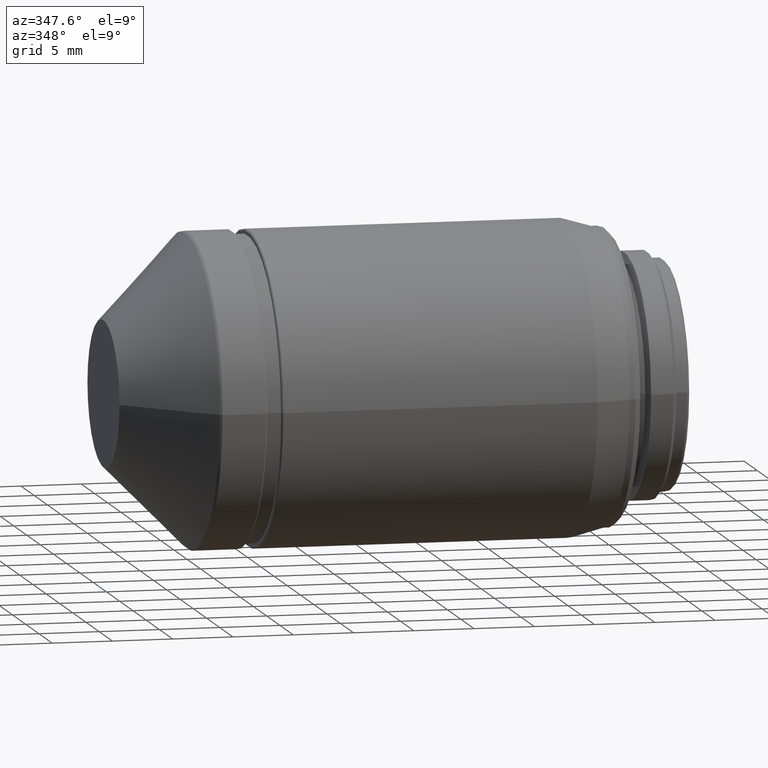
[diagram: clean part render]
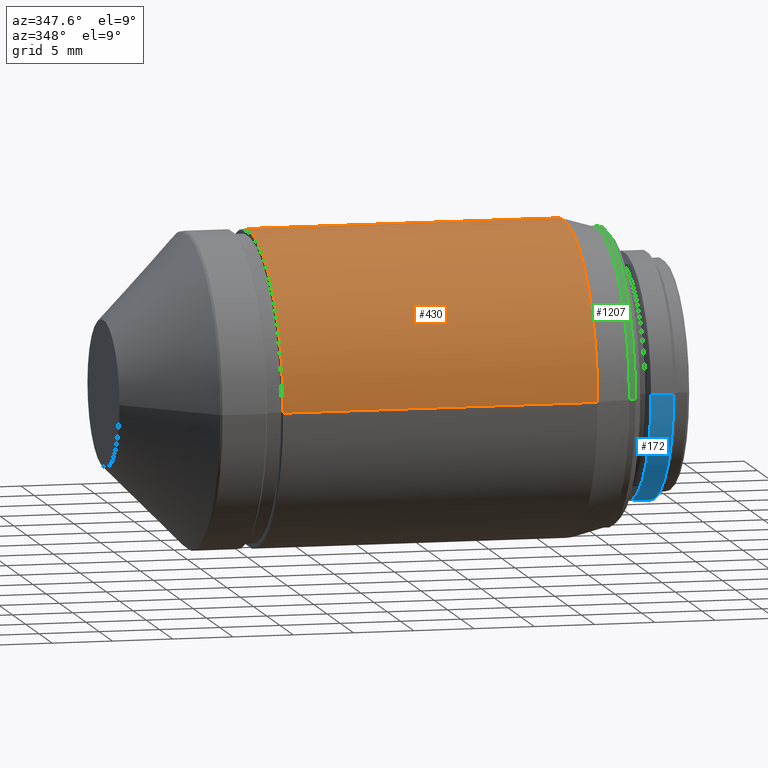
[diagram: same view with three faces highlighted in distinct colors, each labeled with its STEP entity id]
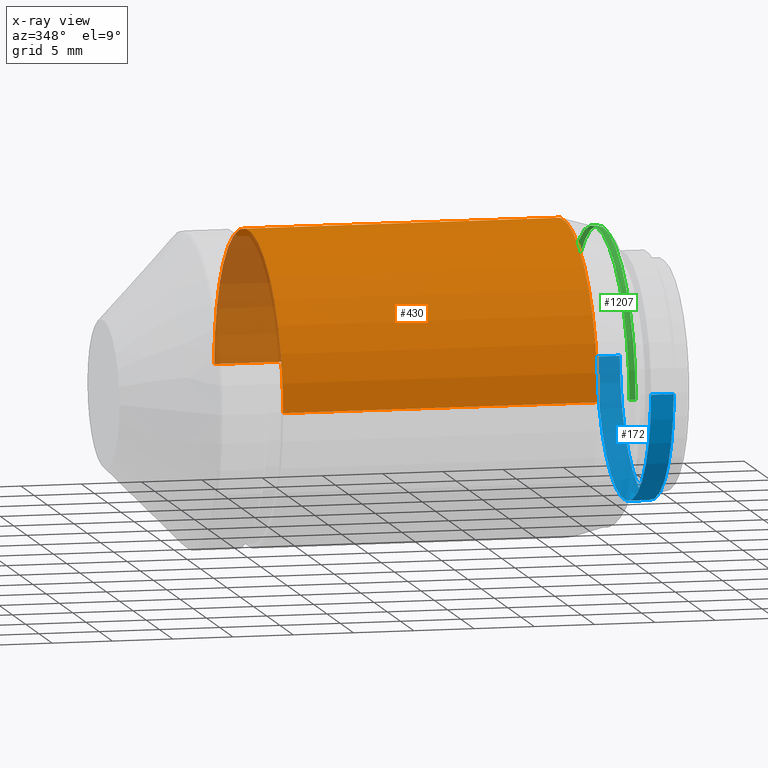
[diagram: x-ray of the same camera — body ghosted, the three highlighted faces saturated]
A machine part, auxiliary view with three faces highlighted in distinct colors.
The next image is the same camera in x-ray (body ghosted, the three faces saturated) — at least one of them is partly hidden behind the body in this view.
Their STEP definitions:

[orange] entity #430 — the highlighted cylindrical surface (partial cylindrical patch) has radius 13 mm, axis along (1, 0, 0).
#41 = DIRECTION ( 'NONE',  ( 2.668805347656626185E-16, -1.000000000000000000, 0.000000000000000000 ) ) ;
#64 = DIRECTION ( 'NONE',  ( 1.000000000000000000, 1.860059517696599800E-16, 0.000000000000000000 ) ) ;
#65 = DIRECTION ( 'NONE',  ( 1.000000000000000000, 1.860059517696599800E-16, 0.000000000000000000 ) ) ;
#68 = VERTEX_POINT ( 'NONE', #272 ) ;
#73 = CARTESIAN_POINT ( 'NONE',  ( 8.099999999999999645, -5.561577957912819503E-15, 0.000000000000000000 ) ) ;
#140 = CARTESIAN_POINT ( 'NONE',  ( 21.15048094716170013, -3.134110828284200127E-15, 0.000000000000000000 ) ) ;
#151 = AXIS2_PLACEMENT_3D ( 'NONE', #73, #65, #461 ) ;
#157 = CARTESIAN_POINT ( 'NONE',  ( 8.099999999999999645, 13.00000000000000000, -1.592040838891559884E-15 ) ) ;
#272 = CARTESIAN_POINT ( 'NONE',  ( 34.20096189432339884, -13.00000000000000000, -1.592040838891559884E-15 ) ) ;
#308 = EDGE_CURVE ( 'NONE', #395, #68, #786, .T. ) ;
#359 = VECTOR ( 'NONE', #1130, 1000.000000000000000 ) ;
#395 = VERTEX_POINT ( 'NONE', #439 ) ;
#411 = ORIENTED_EDGE ( 'NONE', *, *, #616, .T. ) ;
#430 = ADVANCED_FACE ( 'NONE', ( #452 ), #1027, .T. ) ;
#433 = ORIENTED_EDGE ( 'NONE', *, *, #676, .T. ) ;
#439 = CARTESIAN_POINT ( 'NONE',  ( 34.20096189432339884, 13.00000000000000000, 0.000000000000000000 ) ) ;
#452 = FACE_OUTER_BOUND ( 'NONE', #1243, .T. ) ;
#459 = LINE ( 'NONE', #1213, #359 ) ;
#461 = DIRECTION ( 'NONE',  ( -1.334402673828313093E-16, 1.000000000000000000, 0.000000000000000000 ) ) ;
#462 = ORIENTED_EDGE ( 'NONE', *, *, #656, .F. ) ;
#540 = ORIENTED_EDGE ( 'NONE', *, *, #308, .F. ) ;
#564 = AXIS2_PLACEMENT_3D ( 'NONE', #782, #1160, #798 ) ;
#589 = VERTEX_POINT ( 'NONE', #157 ) ;
#609 = AXIS2_PLACEMENT_3D ( 'NONE', #140, #743, #41 ) ;
#616 = EDGE_CURVE ( 'NONE', #589, #814, #707, .T. ) ;
#656 = EDGE_CURVE ( 'NONE', #589, #395, #935, .T. ) ;
#676 = EDGE_CURVE ( 'NONE', #814, #68, #459, .T. ) ;
#707 = CIRCLE ( 'NONE', #151, 13.00000000000000000 ) ;
#743 = DIRECTION ( 'NONE',  ( 1.000000000000000000, 1.860059517696599800E-16, 0.000000000000000000 ) ) ;
#782 = CARTESIAN_POINT ( 'NONE',  ( 34.20096189432339884, -7.066436986555820323E-16, 0.000000000000000000 ) ) ;
#786 = CIRCLE ( 'NONE', #564, 13.00000000000000000 ) ;
#798 = DIRECTION ( 'NONE',  ( 0.000000000000000000, 1.000000000000000000, 0.000000000000000000 ) ) ;
#814 = VERTEX_POINT ( 'NONE', #876 ) ;
#876 = CARTESIAN_POINT ( 'NONE',  ( 8.099999999999999645, -13.00000000000000000, 0.000000000000000000 ) ) ;
#906 = VECTOR ( 'NONE', #64, 1000.000000000000000 ) ;
#935 = LINE ( 'NONE', #1222, #906 ) ;
#1027 = CYLINDRICAL_SURFACE ( 'NONE', #609, 13.00000000000000000 ) ;
#1130 = DIRECTION ( 'NONE',  ( 1.000000000000000000, 1.860059517696599800E-16, 0.000000000000000000 ) ) ;
#1160 = DIRECTION ( 'NONE',  ( 1.000000000000000000, 1.860059517696599800E-16, 0.000000000000000000 ) ) ;
#1213 = CARTESIAN_POINT ( 'NONE',  ( 21.15048094716170013, -13.00000000000000000, 0.000000000000000000 ) ) ;
#1222 = CARTESIAN_POINT ( 'NONE',  ( 21.15048094716170013, 13.00000000000000000, -1.592040838891559884E-15 ) ) ;
#1243 = EDGE_LOOP ( 'NONE', ( #433, #540, #462, #411 ) ) ;

[blue] entity #172 — the highlighted cylindrical surface (partial cylindrical patch) has radius 10.16 mm, axis along (1, 0, 0).
#18 = FACE_OUTER_BOUND ( 'NONE', #816, .T. ) ;
#45 = AXIS2_PLACEMENT_3D ( 'NONE', #997, #700, #200 ) ;
#102 = DIRECTION ( 'NONE',  ( 0.000000000000000000, 1.000000000000000000, 0.000000000000000000 ) ) ;
#105 = CARTESIAN_POINT ( 'NONE',  ( 39.25218366420570248, 2.329136142509960081E-16, 0.000000000000000000 ) ) ;
#124 = VERTEX_POINT ( 'NONE', #491 ) ;
#172 = ADVANCED_FACE ( 'NONE', ( #18 ), #497, .T. ) ;
#177 = ORIENTED_EDGE ( 'NONE', *, *, #220, .T. ) ;
#200 = DIRECTION ( 'NONE',  ( 0.000000000000000000, -1.000000000000000000, 0.000000000000000000 ) ) ;
#219 = ORIENTED_EDGE ( 'NONE', *, *, #751, .F. ) ;
#220 = EDGE_CURVE ( 'NONE', #578, #124, #543, .T. ) ;
#257 = CIRCLE ( 'NONE', #405, 10.16000000000000014 ) ;
#267 = DIRECTION ( 'NONE',  ( 1.000000000000000000, 1.860059517696599800E-16, 0.000000000000000000 ) ) ;
#285 = VERTEX_POINT ( 'NONE', #396 ) ;
#355 = LINE ( 'NONE', #934, #849 ) ;
#393 = CARTESIAN_POINT ( 'NONE',  ( 41.11894882233480075, -10.16000000000000014, -1.244241147933709878E-15 ) ) ;
#396 = CARTESIAN_POINT ( 'NONE',  ( 41.11894882233480075, 10.16000000000000014, 0.000000000000000000 ) ) ;
#405 = AXIS2_PLACEMENT_3D ( 'NONE', #791, #1157, #102 ) ;
#491 = CARTESIAN_POINT ( 'NONE',  ( 39.25218366420570248, 10.16000000000000014, -1.244241147933709878E-15 ) ) ;
#497 = CYLINDRICAL_SURFACE ( 'NONE', #45, 10.16000000000000014 ) ;
#543 = CIRCLE ( 'NONE', #1246, 10.16000000000000014 ) ;
#578 = VERTEX_POINT ( 'NONE', #1225 ) ;
#597 = DIRECTION ( 'NONE',  ( 1.000000000000000000, 1.860059517696599800E-16, 0.000000000000000000 ) ) ;
#648 = CARTESIAN_POINT ( 'NONE',  ( 40.18556624327030136, 10.16000000000000014, -1.244241147933709878E-15 ) ) ;
#689 = EDGE_CURVE ( 'NONE', #124, #285, #1204, .T. ) ;
#700 = DIRECTION ( 'NONE',  ( 1.000000000000000000, 1.860059517696599800E-16, 0.000000000000000000 ) ) ;
#751 = EDGE_CURVE ( 'NONE', #836, #285, #257, .T. ) ;
#791 = CARTESIAN_POINT ( 'NONE',  ( 41.11894882233480075, 5.801430442192509910E-16, 0.000000000000000000 ) ) ;
#816 = EDGE_LOOP ( 'NONE', ( #177, #1045, #219, #1028 ) ) ;
#836 = VERTEX_POINT ( 'NONE', #393 ) ;
#849 = VECTOR ( 'NONE', #1032, 1000.000000000000000 ) ;
#934 = CARTESIAN_POINT ( 'NONE',  ( 40.18556624327030136, -10.16000000000000014, 0.000000000000000000 ) ) ;
#997 = CARTESIAN_POINT ( 'NONE',  ( 40.18556624327030136, 4.065283292351239432E-16, 0.000000000000000000 ) ) ;
#1028 = ORIENTED_EDGE ( 'NONE', *, *, #1216, .F. ) ;
#1032 = DIRECTION ( 'NONE',  ( 1.000000000000000000, 1.860059517696599800E-16, 0.000000000000000000 ) ) ;
#1045 = ORIENTED_EDGE ( 'NONE', *, *, #689, .T. ) ;
#1066 = VECTOR ( 'NONE', #267, 1000.000000000000000 ) ;
#1087 = DIRECTION ( 'NONE',  ( 0.000000000000000000, 1.000000000000000000, 0.000000000000000000 ) ) ;
#1157 = DIRECTION ( 'NONE',  ( 1.000000000000000000, 1.860059517696599800E-16, 0.000000000000000000 ) ) ;
#1204 = LINE ( 'NONE', #648, #1066 ) ;
#1216 = EDGE_CURVE ( 'NONE', #578, #836, #355, .T. ) ;
#1225 = CARTESIAN_POINT ( 'NONE',  ( 39.25218366420570248, -10.16000000000000014, 0.000000000000000000 ) ) ;
#1246 = AXIS2_PLACEMENT_3D ( 'NONE', #105, #597, #1087 ) ;

[green] entity #1207 — the highlighted cylindrical surface (partial cylindrical patch) has radius 12.25 mm, axis along (1, 0, 0).
#1 = CARTESIAN_POINT ( 'NONE',  ( 37.50000000000000000, -9.300297588483060630E-17, 0.000000000000000000 ) ) ;
#5 = DIRECTION ( 'NONE',  ( 0.000000000000000000, 1.000000000000000000, 0.000000000000000000 ) ) ;
#46 = CARTESIAN_POINT ( 'NONE',  ( 37.00000000000000000, -12.25000000000000000, 0.000000000000000000 ) ) ;
#94 = LINE ( 'NONE', #899, #146 ) ;
#107 = AXIS2_PLACEMENT_3D ( 'NONE', #1, #112, #5 ) ;
#112 = DIRECTION ( 'NONE',  ( 1.000000000000000000, 1.860059517696599800E-16, 0.000000000000000000 ) ) ;
#141 = ORIENTED_EDGE ( 'NONE', *, *, #227, .F. ) ;
#146 = VECTOR ( 'NONE', #1077, 1000.000000000000000 ) ;
#163 = EDGE_CURVE ( 'NONE', #996, #1199, #94, .T. ) ;
#173 = VECTOR ( 'NONE', #323, 1000.000000000000000 ) ;
#223 = CARTESIAN_POINT ( 'NONE',  ( 37.25000000000000000, -12.25000000000000000, 0.000000000000000000 ) ) ;
#227 = EDGE_CURVE ( 'NONE', #1199, #1070, #522, .T. ) ;
#242 = CARTESIAN_POINT ( 'NONE',  ( 37.00000000000000000, -1.860059517696600047E-16, 0.000000000000000000 ) ) ;
#246 = CARTESIAN_POINT ( 'NONE',  ( 37.50000000000000000, 12.25000000000000000, 0.000000000000000000 ) ) ;
#254 = AXIS2_PLACEMENT_3D ( 'NONE', #242, #1215, #533 ) ;
#265 = EDGE_LOOP ( 'NONE', ( #768, #141, #361, #1164 ) ) ;
#323 = DIRECTION ( 'NONE',  ( 1.000000000000000000, 1.860059517696599800E-16, 0.000000000000000000 ) ) ;
#329 = CARTESIAN_POINT ( 'NONE',  ( 37.50000000000000000, -12.25000000000000000, -1.500192328955510101E-15 ) ) ;
#338 = VERTEX_POINT ( 'NONE', #46 ) ;
#361 = ORIENTED_EDGE ( 'NONE', *, *, #163, .F. ) ;
#384 = EDGE_CURVE ( 'NONE', #996, #338, #1209, .T. ) ;
#522 = CIRCLE ( 'NONE', #107, 12.25000000000000000 ) ;
#533 = DIRECTION ( 'NONE',  ( 0.000000000000000000, 1.000000000000000000, 0.000000000000000000 ) ) ;
#536 = CYLINDRICAL_SURFACE ( 'NONE', #675, 12.25000000000000000 ) ;
#615 = CARTESIAN_POINT ( 'NONE',  ( 37.00000000000000000, 12.25000000000000000, -1.500192328955510101E-15 ) ) ;
#659 = DIRECTION ( 'NONE',  ( 0.000000000000000000, -1.000000000000000000, 0.000000000000000000 ) ) ;
#675 = AXIS2_PLACEMENT_3D ( 'NONE', #826, #921, #659 ) ;
#768 = ORIENTED_EDGE ( 'NONE', *, *, #895, .T. ) ;
#796 = LINE ( 'NONE', #223, #173 ) ;
#826 = CARTESIAN_POINT ( 'NONE',  ( 37.25000000000000000, -1.395044638272449973E-16, 0.000000000000000000 ) ) ;
#895 = EDGE_CURVE ( 'NONE', #338, #1070, #796, .T. ) ;
#899 = CARTESIAN_POINT ( 'NONE',  ( 37.25000000000000000, 12.25000000000000000, -1.500192328955510101E-15 ) ) ;
#921 = DIRECTION ( 'NONE',  ( 1.000000000000000000, 1.860059517696599800E-16, 0.000000000000000000 ) ) ;
#996 = VERTEX_POINT ( 'NONE', #615 ) ;
#1070 = VERTEX_POINT ( 'NONE', #329 ) ;
#1077 = DIRECTION ( 'NONE',  ( 1.000000000000000000, 1.860059517696599800E-16, 0.000000000000000000 ) ) ;
#1124 = FACE_OUTER_BOUND ( 'NONE', #265, .T. ) ;
#1164 = ORIENTED_EDGE ( 'NONE', *, *, #384, .T. ) ;
#1199 = VERTEX_POINT ( 'NONE', #246 ) ;
#1207 = ADVANCED_FACE ( 'NONE', ( #1124 ), #536, .T. ) ;
#1209 = CIRCLE ( 'NONE', #254, 12.25000000000000000 ) ;
#1215 = DIRECTION ( 'NONE',  ( 1.000000000000000000, 1.860059517696599800E-16, 0.000000000000000000 ) ) ;